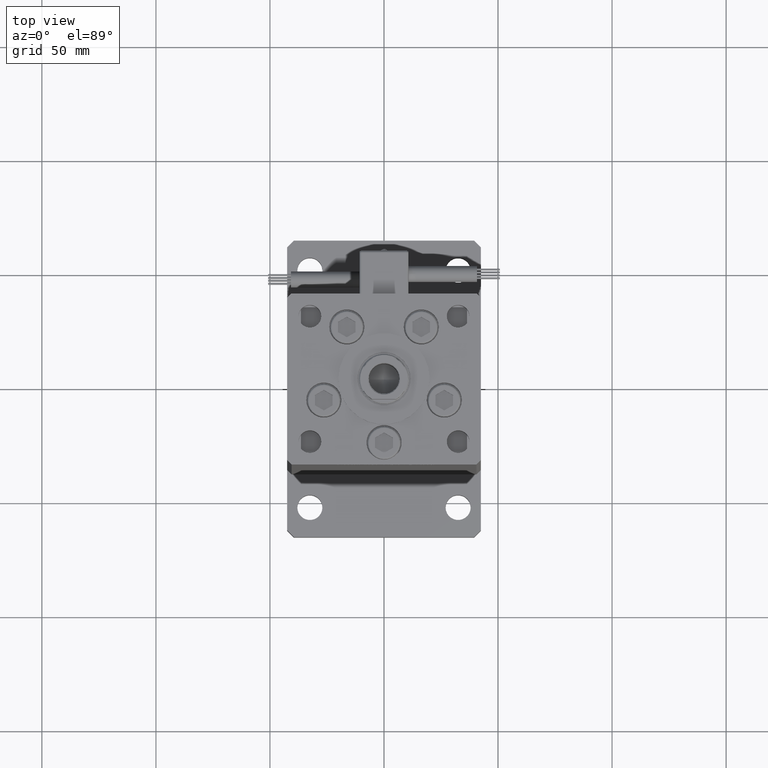
[diagram: clean part render]
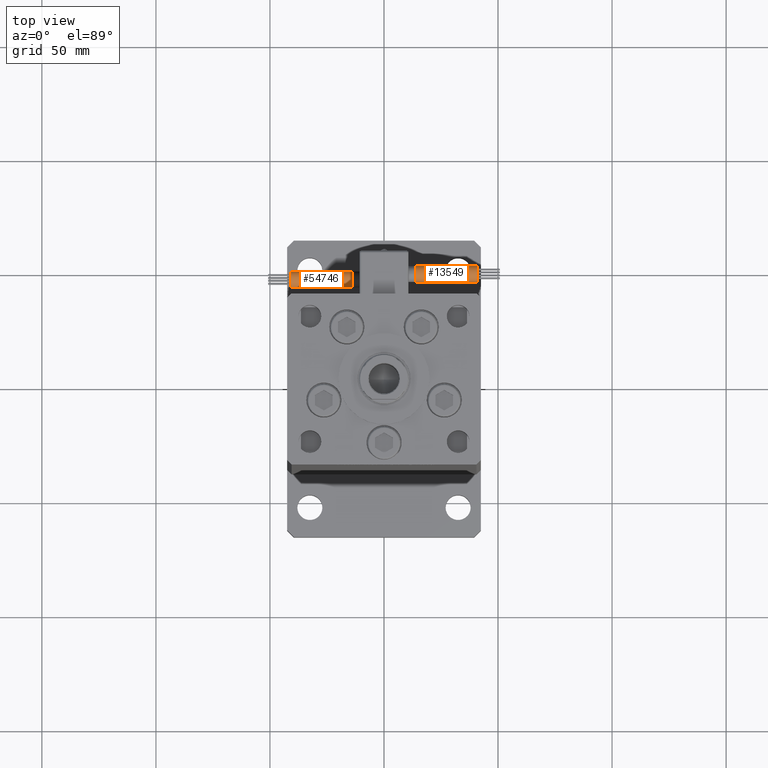
[diagram: same view with one multi-face feature highlighted, each face labeled with its STEP entity id]
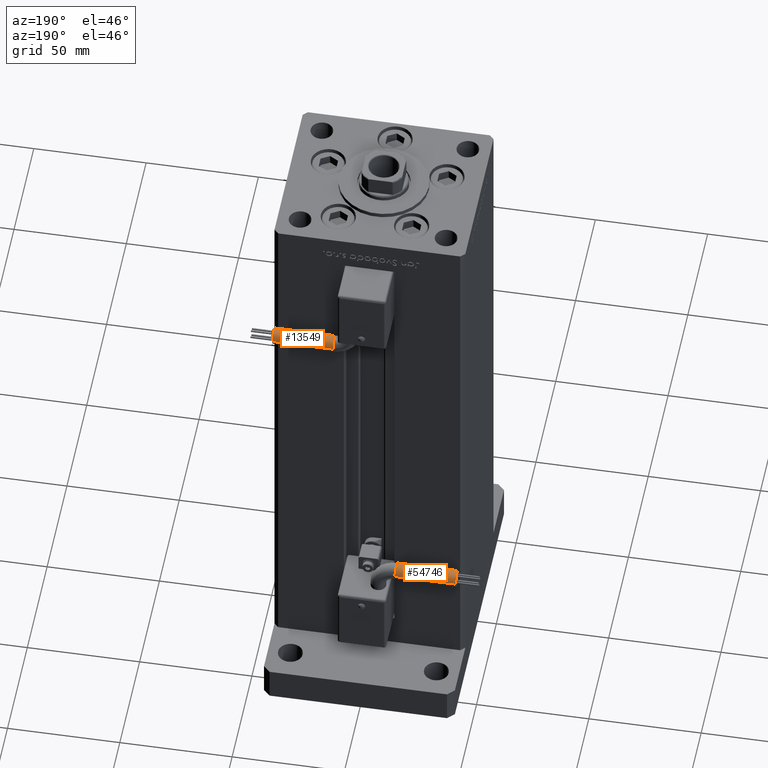
[diagram: same view with one multi-face feature highlighted, each face labeled with its STEP entity id]
A machine part, top view. The highlighted faces form ONE feature: a constant-radius fillet chain: 2 tangent blend faces with common blend radius 3.5 mm. The faces share edges in the B-rep.
A second angle (auxiliary view) of the same feature is appended — it is thin or edge-on in the first view.
Their STEP definitions:
[1] entity #54746 (Cylinder):
#231 = CARTESIAN_POINT ( 'NONE',  ( 13.80000000000000071, 45.50000000000000711, -65.00000000000000000 ) ) ;
#362 = AXIS2_PLACEMENT_3D ( 'NONE', #2155, #28331, #6425 ) ;
#1113 = FACE_OUTER_BOUND ( 'NONE', #20095, .T. ) ;
#1697 = AXIS2_PLACEMENT_3D ( 'NONE', #9836, #36035, #21799 ) ;
#2155 = CARTESIAN_POINT ( 'NONE',  ( 13.79999999999999893, 42.00000000000000000, -65.00000000000000000 ) ) ;
#4377 = ORIENTED_EDGE ( 'NONE', *, *, #16943, .T. ) ;
#5352 = CIRCLE ( 'NONE', #1697, 3.500000000000003109 ) ;
#5959 = VECTOR ( 'NONE', #46932, 1000.000000000000000 ) ;
#6425 = DIRECTION ( 'NONE',  ( -4.956352788505158337E-16, -1.000000000000000000, 0.000000000000000000 ) ) ;
#6792 = CARTESIAN_POINT ( 'NONE',  ( 40.80000000000000426, 38.50000000000000000, -65.00000000000000000 ) ) ;
#6885 = DIRECTION ( 'NONE',  ( 1.000000000000000000, -2.599999999999999847E-16, 2.220446049250000002E-16 ) ) ;
#8241 = CIRCLE ( 'NONE', #51904, 3.500000000000003109 ) ;
#9836 = CARTESIAN_POINT ( 'NONE',  ( 13.79999999999999893, 42.00000000000000000, -65.00000000000000000 ) ) ;
#11058 = LINE ( 'NONE', #231, #5959 ) ;
#11431 = CARTESIAN_POINT ( 'NONE',  ( 13.79999999999999716, 38.50000000000000000, -65.00000000000000000 ) ) ;
#11936 = VERTEX_POINT ( 'NONE', #53426 ) ;
#12036 = EDGE_CURVE ( 'NONE', #32640, #40728, #5352, .T. ) ;
#14816 = DIRECTION ( 'NONE',  ( 0.000000000000000000, 0.000000000000000000, -1.000000000000000000 ) ) ;
#16509 = CIRCLE ( 'NONE', #21964, 3.500000000000003109 ) ;
#16943 = EDGE_CURVE ( 'NONE', #11936, #32640, #8241, .T. ) ;
#17239 = VERTEX_POINT ( 'NONE', #27495 ) ;
#18447 = CYLINDRICAL_SURFACE ( 'NONE', #362, 3.500000000000003109 ) ;
#19801 = ORIENTED_EDGE ( 'NONE', *, *, #12036, .T. ) ;
#20089 = ORIENTED_EDGE ( 'NONE', *, *, #33297, .T. ) ;
#20095 = EDGE_LOOP ( 'NONE', ( #4377, #19801, #20089, #55590, #55510 ) ) ;
#21799 = DIRECTION ( 'NONE',  ( 0.000000000000000000, 0.000000000000000000, -1.000000000000000000 ) ) ;
#21964 = AXIS2_PLACEMENT_3D ( 'NONE', #23072, #50105, #14816 ) ;
#23072 = CARTESIAN_POINT ( 'NONE',  ( 40.80000000000000426, 42.00000000000000000, -65.00000000000000000 ) ) ;
#25306 = DIRECTION ( 'NONE',  ( 1.000000000000000000, 0.000000000000000000, 2.220446049250000002E-16 ) ) ;
#27426 = LINE ( 'NONE', #11431, #49978 ) ;
#27495 = CARTESIAN_POINT ( 'NONE',  ( 40.80000000000000426, 45.50000000000000711, -65.00000000000000000 ) ) ;
#28331 = DIRECTION ( 'NONE',  ( 1.000000000000000000, -2.599999999999999847E-16, 2.220446049250000002E-16 ) ) ;
#29591 = DIRECTION ( 'NONE',  ( 0.000000000000000000, 0.000000000000000000, -1.000000000000000000 ) ) ;
#32640 = VERTEX_POINT ( 'NONE', #37668 ) ;
#33297 = EDGE_CURVE ( 'NONE', #40728, #17239, #11058, .T. ) ;
#33774 = CARTESIAN_POINT ( 'NONE',  ( 13.79999999999999893, 45.50000000000000711, -65.00000000000000000 ) ) ;
#36035 = DIRECTION ( 'NONE',  ( 1.000000000000000000, 0.000000000000000000, 2.220446049250000002E-16 ) ) ;
#37668 = CARTESIAN_POINT ( 'NONE',  ( 13.79999999999999893, 42.00000000000000000, -68.50000000000000000 ) ) ;
#40111 = EDGE_CURVE ( 'NONE', #11936, #44542, #27426, .T. ) ;
#40728 = VERTEX_POINT ( 'NONE', #33774 ) ;
#44542 = VERTEX_POINT ( 'NONE', #6792 ) ;
#45341 = EDGE_CURVE ( 'NONE', #44542, #17239, #16509, .T. ) ;
#46932 = DIRECTION ( 'NONE',  ( 1.000000000000000000, -2.599999999999999847E-16, 2.220446049250000002E-16 ) ) ;
#49978 = VECTOR ( 'NONE', #6885, 1000.000000000000000 ) ;
#50105 = DIRECTION ( 'NONE',  ( 1.000000000000000000, 0.000000000000000000, 2.220446049250000002E-16 ) ) ;
#50610 = CARTESIAN_POINT ( 'NONE',  ( 13.79999999999999893, 42.00000000000000000, -65.00000000000000000 ) ) ;
#51904 = AXIS2_PLACEMENT_3D ( 'NONE', #50610, #25306, #29591 ) ;
#53426 = CARTESIAN_POINT ( 'NONE',  ( 13.79999999999999893, 38.50000000000000000, -65.00000000000000000 ) ) ;
#54746 = ADVANCED_FACE ( 'NONE', ( #1113 ), #18447, .T. ) ;
#55510 = ORIENTED_EDGE ( 'NONE', *, *, #40111, .F. ) ;
#55590 = ORIENTED_EDGE ( 'NONE', *, *, #45341, .F. ) ;
[2] entity #13549 (Cylinder):
#231 = CARTESIAN_POINT ( 'NONE',  ( 13.80000000000000071, 45.50000000000000711, -65.00000000000000000 ) ) ;
#261 = ORIENTED_EDGE ( 'NONE', *, *, #33297, .F. ) ;
#513 = ORIENTED_EDGE ( 'NONE', *, *, #46918, .T. ) ;
#2630 = VERTEX_POINT ( 'NONE', #48716 ) ;
#5959 = VECTOR ( 'NONE', #46932, 1000.000000000000000 ) ;
#6642 = DIRECTION ( 'NONE',  ( 0.000000000000000000, 0.000000000000000000, -1.000000000000000000 ) ) ;
#6792 = CARTESIAN_POINT ( 'NONE',  ( 40.80000000000000426, 38.50000000000000000, -65.00000000000000000 ) ) ;
#6885 = DIRECTION ( 'NONE',  ( 1.000000000000000000, -2.599999999999999847E-16, 2.220446049250000002E-16 ) ) ;
#9084 = CYLINDRICAL_SURFACE ( 'NONE', #47217, 3.500000000000003109 ) ;
#10229 = CIRCLE ( 'NONE', #12007, 3.500000000000003109 ) ;
#11058 = LINE ( 'NONE', #231, #5959 ) ;
#11431 = CARTESIAN_POINT ( 'NONE',  ( 13.79999999999999716, 38.50000000000000000, -65.00000000000000000 ) ) ;
#11936 = VERTEX_POINT ( 'NONE', #53426 ) ;
#12007 = AXIS2_PLACEMENT_3D ( 'NONE', #31502, #41156, #54004 ) ;
#13549 = ADVANCED_FACE ( 'NONE', ( #21887 ), #9084, .T. ) ;
#13636 = DIRECTION ( 'NONE',  ( -4.956352788505158337E-16, -1.000000000000000000, 0.000000000000000000 ) ) ;
#17239 = VERTEX_POINT ( 'NONE', #27495 ) ;
#18009 = ORIENTED_EDGE ( 'NONE', *, *, #50488, .T. ) ;
#19027 = DIRECTION ( 'NONE',  ( 0.000000000000000000, 0.000000000000000000, -1.000000000000000000 ) ) ;
#19173 = EDGE_CURVE ( 'NONE', #17239, #44542, #32846, .T. ) ;
#20109 = AXIS2_PLACEMENT_3D ( 'NONE', #28279, #45662, #6642 ) ;
#21601 = DIRECTION ( 'NONE',  ( 1.000000000000000000, -2.599999999999999847E-16, 2.220446049250000002E-16 ) ) ;
#21887 = FACE_OUTER_BOUND ( 'NONE', #44036, .T. ) ;
#24872 = ORIENTED_EDGE ( 'NONE', *, *, #19173, .F. ) ;
#27426 = LINE ( 'NONE', #11431, #49978 ) ;
#27495 = CARTESIAN_POINT ( 'NONE',  ( 40.80000000000000426, 45.50000000000000711, -65.00000000000000000 ) ) ;
#28279 = CARTESIAN_POINT ( 'NONE',  ( 40.80000000000000426, 42.00000000000000000, -65.00000000000000000 ) ) ;
#31502 = CARTESIAN_POINT ( 'NONE',  ( 13.79999999999999893, 42.00000000000000000, -65.00000000000000000 ) ) ;
#32846 = CIRCLE ( 'NONE', #20109, 3.500000000000003109 ) ;
#33297 = EDGE_CURVE ( 'NONE', #40728, #17239, #11058, .T. ) ;
#33774 = CARTESIAN_POINT ( 'NONE',  ( 13.79999999999999893, 45.50000000000000711, -65.00000000000000000 ) ) ;
#33986 = ORIENTED_EDGE ( 'NONE', *, *, #40111, .T. ) ;
#36709 = AXIS2_PLACEMENT_3D ( 'NONE', #49521, #54355, #19027 ) ;
#40111 = EDGE_CURVE ( 'NONE', #11936, #44542, #27426, .T. ) ;
#40728 = VERTEX_POINT ( 'NONE', #33774 ) ;
#41156 = DIRECTION ( 'NONE',  ( 1.000000000000000000, 0.000000000000000000, 2.220446049250000002E-16 ) ) ;
#43539 = CARTESIAN_POINT ( 'NONE',  ( 13.79999999999999893, 42.00000000000000000, -65.00000000000000000 ) ) ;
#44036 = EDGE_LOOP ( 'NONE', ( #261, #513, #18009, #33986, #24872 ) ) ;
#44542 = VERTEX_POINT ( 'NONE', #6792 ) ;
#45662 = DIRECTION ( 'NONE',  ( 1.000000000000000000, 0.000000000000000000, 2.220446049250000002E-16 ) ) ;
#46918 = EDGE_CURVE ( 'NONE', #40728, #2630, #10229, .T. ) ;
#46932 = DIRECTION ( 'NONE',  ( 1.000000000000000000, -2.599999999999999847E-16, 2.220446049250000002E-16 ) ) ;
#47217 = AXIS2_PLACEMENT_3D ( 'NONE', #43539, #21601, #13636 ) ;
#48537 = CIRCLE ( 'NONE', #36709, 3.500000000000003109 ) ;
#48716 = CARTESIAN_POINT ( 'NONE',  ( 13.79999999999999893, 41.99999999999999289, -61.50000000000000000 ) ) ;
#49521 = CARTESIAN_POINT ( 'NONE',  ( 13.79999999999999893, 42.00000000000000000, -65.00000000000000000 ) ) ;
#49978 = VECTOR ( 'NONE', #6885, 1000.000000000000000 ) ;
#50488 = EDGE_CURVE ( 'NONE', #2630, #11936, #48537, .T. ) ;
#53426 = CARTESIAN_POINT ( 'NONE',  ( 13.79999999999999893, 38.50000000000000000, -65.00000000000000000 ) ) ;
#54004 = DIRECTION ( 'NONE',  ( 0.000000000000000000, 0.000000000000000000, -1.000000000000000000 ) ) ;
#54355 = DIRECTION ( 'NONE',  ( 1.000000000000000000, 0.000000000000000000, 2.220446049250000002E-16 ) ) ;